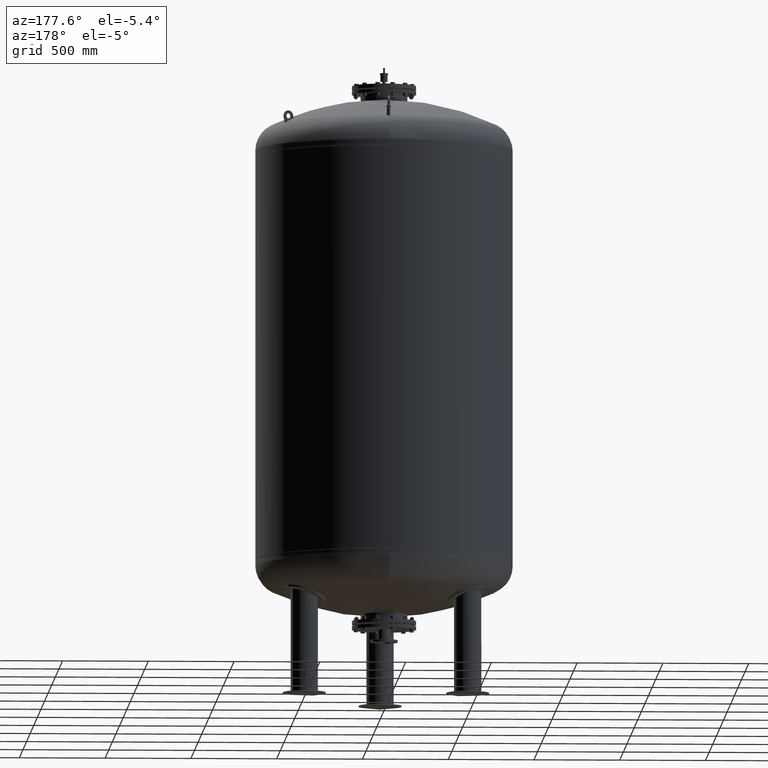
[diagram: clean part render]
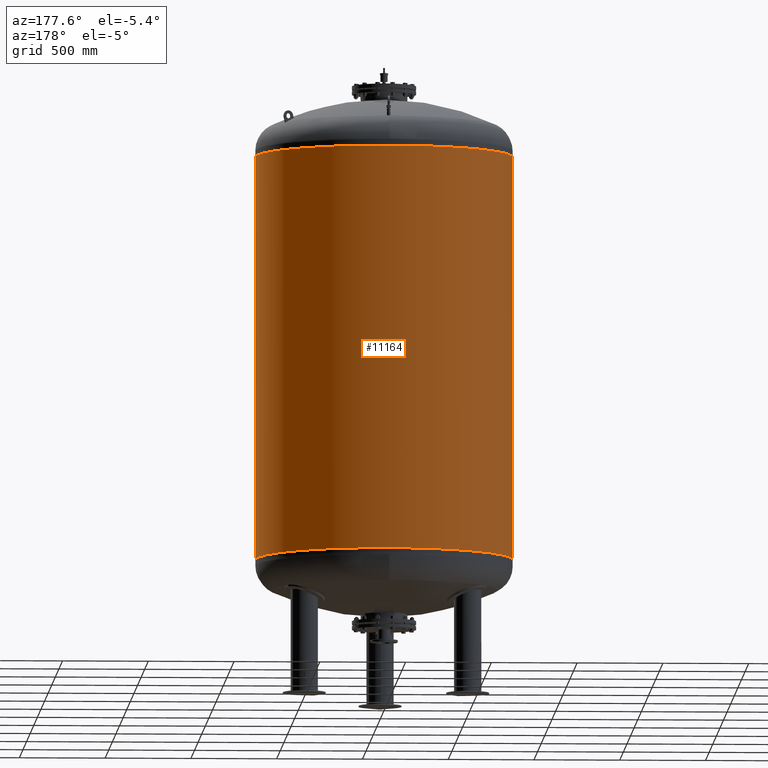
[diagram: same view with one face highlighted and labeled with its STEP entity id]
A machine part, auxiliary view. The second image highlights one B-rep face of the part: STEP entity #11164.
In plain terms, the highlighted cylindrical surface (partial cylindrical patch) has radius 750 mm, axis along (0, 0, 1).
Its self-contained STEP definition (entity closure, byte-faithful):
#11044=CARTESIAN_POINT('',(750.000000000001360,0.0,3177.0));
#11045=VERTEX_POINT('',#11044);
#11046=CARTESIAN_POINT('',(749.999999999999890,0.0,822.999999999999770));
#11047=VERTEX_POINT('',#11046);
#11048=CARTESIAN_POINT('',(750.000000000001360,0.0,3177.0));
#11049=DIRECTION('',(0.0,0.0,-1.0));
#11050=VECTOR('',#11049,2354.0);
#11051=LINE('',#11048,#11050);
#11052=EDGE_CURVE('',#11045,#11047,#11051,.T.);
#11054=CARTESIAN_POINT('',(-750.000000000000910,-9.184548E-014,3177.0));
#11055=VERTEX_POINT('',#11054);
#11063=CARTESIAN_POINT('',(-749.999999999999770,-9.184548E-014,822.999999999999660));
#11064=VERTEX_POINT('',#11063);
#11065=CARTESIAN_POINT('',(-750.000000000000910,-9.184548E-014,3177.0));
#11066=DIRECTION('',(0.0,0.0,-1.0));
#11067=VECTOR('',#11066,2354.000000000000500);
#11068=LINE('',#11065,#11067);
#11069=EDGE_CURVE('',#11055,#11064,#11068,.T.);
#11137=CARTESIAN_POINT('',(-1.664554E-014,0.0,822.999999999999550));
#11138=DIRECTION('',(0.0,0.0,1.0));
#11139=DIRECTION('',(1.0,0.0,0.0));
#11140=AXIS2_PLACEMENT_3D('',#11137,#11138,#11139);
#11141=CIRCLE('',#11140,749.999999999999890);
#11142=EDGE_CURVE('',#11047,#11064,#11141,.T.);
#11147=CARTESIAN_POINT('',(8.322769E-015,0.0,2588.500000000000000));
#11148=DIRECTION('',(1.414234E-017,0.0,1.0));
#11149=DIRECTION('',(1.0,0.0,0.0));
#11150=AXIS2_PLACEMENT_3D('',#11147,#11148,#11149);
#11151=CYLINDRICAL_SURFACE('',#11150,750.000000000000910);
#11152=ORIENTED_EDGE('',*,*,#11052,.T.);
#11153=ORIENTED_EDGE('',*,*,#11142,.T.);
#11154=ORIENTED_EDGE('',*,*,#11069,.F.);
#11155=CARTESIAN_POINT('',(1.664554E-014,0.0,3177.0));
#11156=DIRECTION('',(0.0,0.0,1.0));
#11157=DIRECTION('',(1.0,0.0,0.0));
#11158=AXIS2_PLACEMENT_3D('',#11155,#11156,#11157);
#11159=CIRCLE('',#11158,750.000000000001360);
#11160=EDGE_CURVE('',#11045,#11055,#11159,.T.);
#11161=ORIENTED_EDGE('',*,*,#11160,.F.);
#11162=EDGE_LOOP('',(#11152,#11153,#11154,#11161));
#11163=FACE_OUTER_BOUND('',#11162,.T.);
#11164=ADVANCED_FACE('',(#11163),#11151,.T.);